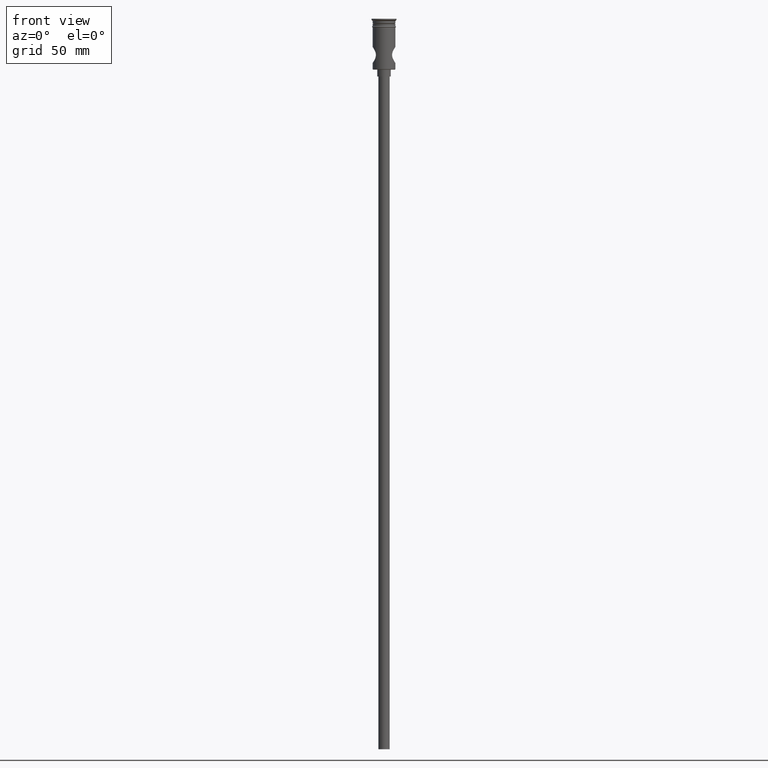
[diagram: clean part render]
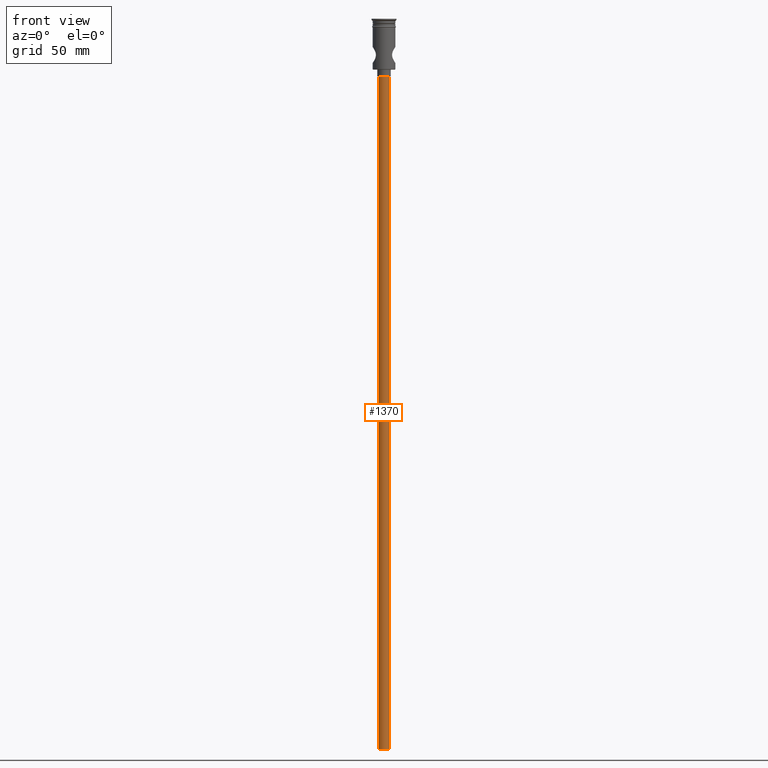
[diagram: same view with one face highlighted and labeled with its STEP entity id]
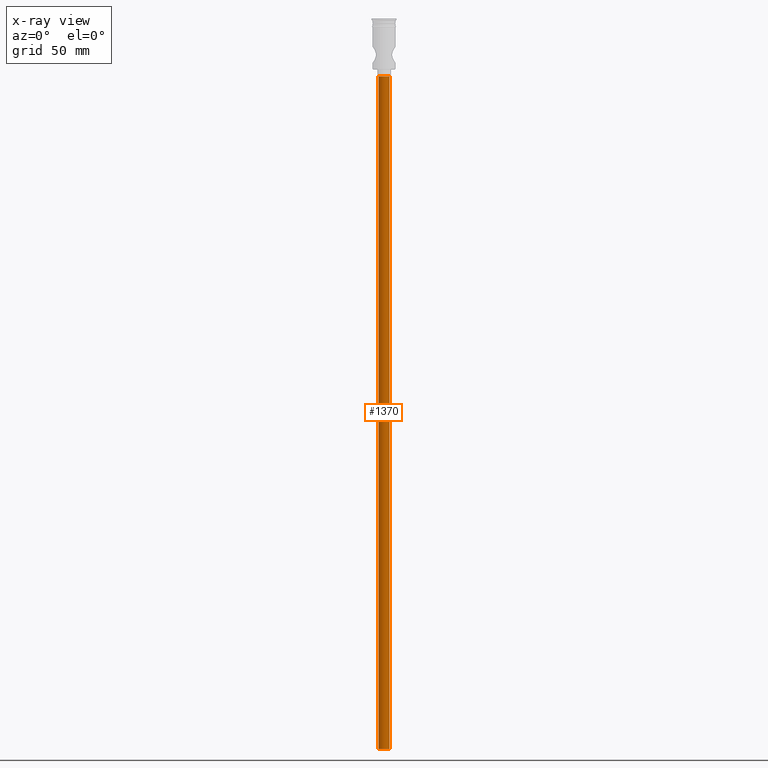
[diagram: x-ray of the same camera — body ghosted, the highlighted face saturated]
A machine part, front view. The second image highlights one B-rep face of the part: STEP entity #1370.
The next image is the same camera in x-ray: the body ghosted, the highlighted face saturated — about 0% of this face is hidden behind the body in this view.
In plain terms, the highlighted cylindrical surface (edge-blend (fillet) strip) has radius 2.5 mm, axis along (-0, -0, 1).
Its self-contained STEP definition (entity closure, byte-faithful):
#130 = LINE ( 'NONE', #572, #728 ) ;
#257 = CARTESIAN_POINT ( 'NONE',  ( 0.000000000000000000, 0.000000000000000000, -322.5000000000000000 ) ) ;
#268 = LINE ( 'NONE', #985, #1399 ) ;
#292 = DIRECTION ( 'NONE',  ( 1.000000000000000000, 0.000000000000000000, 0.000000000000000000 ) ) ;
#306 = CARTESIAN_POINT ( 'NONE',  ( -2.500000000000000000, 3.061616997868383141E-16, -322.5000000000000000 ) ) ;
#311 = CARTESIAN_POINT ( 'NONE',  ( -2.500000000000000000, 3.061616997868383141E-16, -25.50000000000000000 ) ) ;
#325 = AXIS2_PLACEMENT_3D ( 'NONE', #481, #742, #1206 ) ;
#377 = ORIENTED_EDGE ( 'NONE', *, *, #1166, .F. ) ;
#425 = ORIENTED_EDGE ( 'NONE', *, *, #1316, .F. ) ;
#446 = DIRECTION ( 'NONE',  ( -1.000000000000000000, 0.000000000000000000, 0.000000000000000000 ) ) ;
#481 = CARTESIAN_POINT ( 'NONE',  ( 0.000000000000000000, 0.000000000000000000, -25.50000000000000000 ) ) ;
#542 = ORIENTED_EDGE ( 'NONE', *, *, #866, .T. ) ;
#559 = DIRECTION ( 'NONE',  ( 0.000000000000000000, 0.000000000000000000, -1.000000000000000000 ) ) ;
#569 = ORIENTED_EDGE ( 'NONE', *, *, #1403, .T. ) ;
#572 = CARTESIAN_POINT ( 'NONE',  ( -2.500000000000000000, 3.061616997868383141E-16, -322.5000000000000000 ) ) ;
#583 = CARTESIAN_POINT ( 'NONE',  ( 2.500000000000000000, 0.000000000000000000, -25.50000000000000000 ) ) ;
#719 = FACE_OUTER_BOUND ( 'NONE', #950, .T. ) ;
#722 = CARTESIAN_POINT ( 'NONE',  ( 2.500000000000000000, 0.000000000000000000, -322.5000000000000000 ) ) ;
#728 = VECTOR ( 'NONE', #1314, 1000.000000000000000 ) ;
#742 = DIRECTION ( 'NONE',  ( 0.000000000000000000, 0.000000000000000000, -1.000000000000000000 ) ) ;
#787 = VERTEX_POINT ( 'NONE', #722 ) ;
#856 = CIRCLE ( 'NONE', #325, 2.500000000000000000 ) ;
#866 = EDGE_CURVE ( 'NONE', #787, #1237, #268, .T. ) ;
#950 = EDGE_LOOP ( 'NONE', ( #425, #377, #542, #569 ) ) ;
#954 = CYLINDRICAL_SURFACE ( 'NONE', #1093, 2.500000000000000000 ) ;
#985 = CARTESIAN_POINT ( 'NONE',  ( 2.500000000000000000, 0.000000000000000000, -322.5000000000000000 ) ) ;
#1059 = VERTEX_POINT ( 'NONE', #311 ) ;
#1068 = CIRCLE ( 'NONE', #1331, 2.500000000000000000 ) ;
#1093 = AXIS2_PLACEMENT_3D ( 'NONE', #1306, #1406, #292 ) ;
#1097 = VERTEX_POINT ( 'NONE', #306 ) ;
#1166 = EDGE_CURVE ( 'NONE', #787, #1097, #1068, .T. ) ;
#1206 = DIRECTION ( 'NONE',  ( -1.000000000000000000, 0.000000000000000000, 0.000000000000000000 ) ) ;
#1237 = VERTEX_POINT ( 'NONE', #583 ) ;
#1294 = DIRECTION ( 'NONE',  ( -0.000000000000000000, -0.000000000000000000, 1.000000000000000000 ) ) ;
#1306 = CARTESIAN_POINT ( 'NONE',  ( 0.000000000000000000, 0.000000000000000000, -322.5000000000000000 ) ) ;
#1314 = DIRECTION ( 'NONE',  ( -0.000000000000000000, -0.000000000000000000, 1.000000000000000000 ) ) ;
#1316 = EDGE_CURVE ( 'NONE', #1097, #1059, #130, .T. ) ;
#1331 = AXIS2_PLACEMENT_3D ( 'NONE', #257, #559, #446 ) ;
#1370 = ADVANCED_FACE ( 'NONE', ( #719 ), #954, .T. ) ;
#1399 = VECTOR ( 'NONE', #1294, 1000.000000000000000 ) ;
#1403 = EDGE_CURVE ( 'NONE', #1237, #1059, #856, .T. ) ;
#1406 = DIRECTION ( 'NONE',  ( -0.000000000000000000, -0.000000000000000000, 1.000000000000000000 ) ) ;